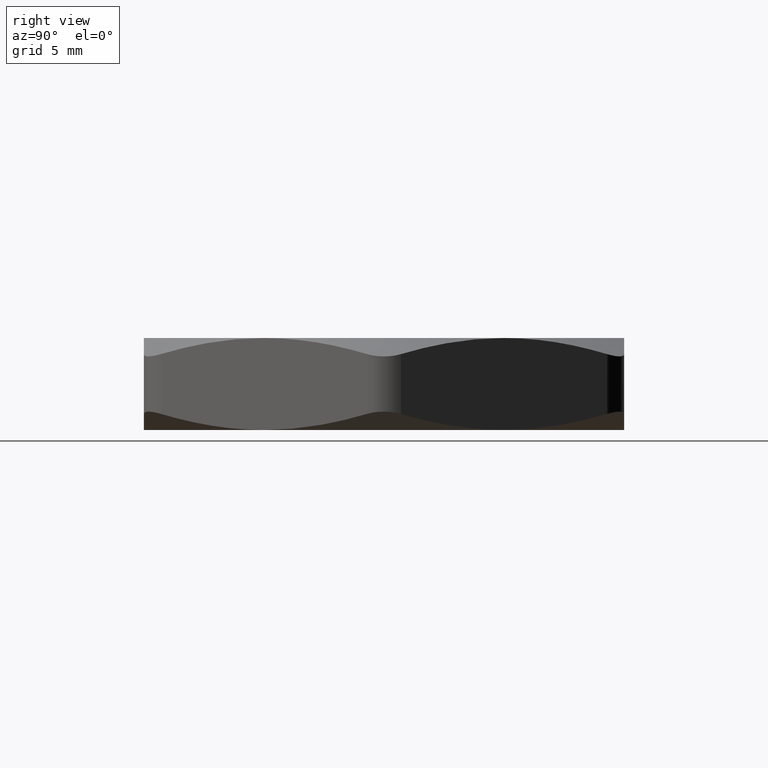
[diagram: clean part render]
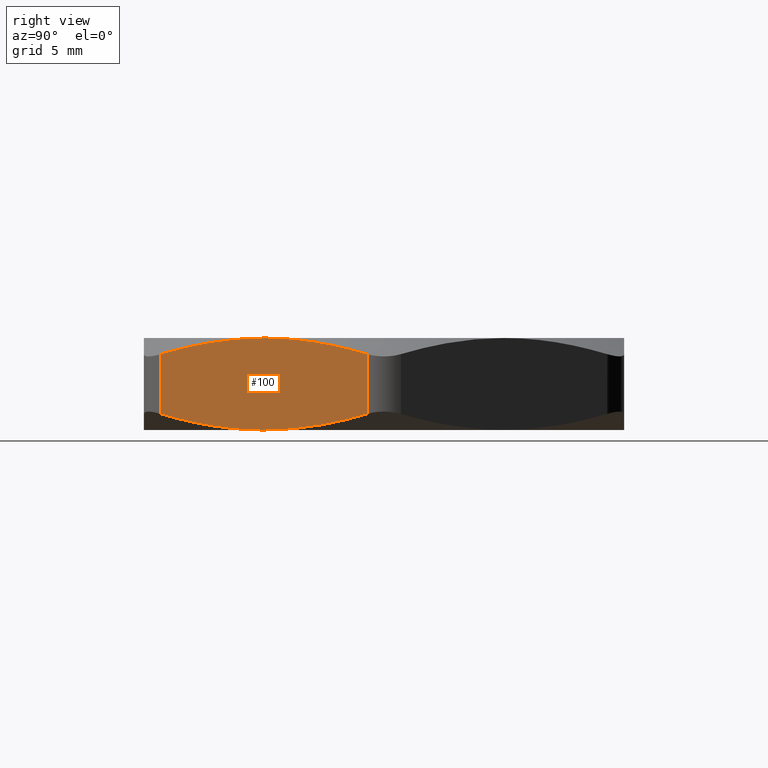
[diagram: same view with one face highlighted and labeled with its STEP entity id]
A machine part, right view. The second image highlights one B-rep face of the part: STEP entity #100.
In plain terms, the highlighted planar face has unit normal (-0.866, 0.5, 0).
Its self-contained STEP definition (entity closure, byte-faithful):
#52 = ORIENTED_EDGE ( 'NONE', *, *, #53, .T. ) ;
#53 = EDGE_CURVE ( 'NONE', #55, #54, #200, .T. ) ;
#54 = VERTEX_POINT ( 'NONE', #252 ) ;
#55 = VERTEX_POINT ( 'NONE', #251 ) ;
#56 = ORIENTED_EDGE ( 'NONE', *, *, #57, .T. ) ;
#57 = EDGE_CURVE ( 'NONE', #166, #58, #250, .T. ) ;
#58 = VERTEX_POINT ( 'NONE', #246 ) ;
#59 = ORIENTED_EDGE ( 'NONE', *, *, #60, .F. ) ;
#60 = EDGE_CURVE ( 'NONE', #120, #58, #245, .T. ) ;
#62 = ORIENTED_EDGE ( 'NONE', *, *, #63, .F. ) ;
#63 = EDGE_CURVE ( 'NONE', #55, #120, #244, .T. ) ;
#100 = ADVANCED_FACE ( 'NONE', ( #330 ), #327, .F. ) ;
#115 = EDGE_LOOP ( 'NONE', ( #116, #56, #59, #62, #52, #158 ) ) ;
#116 = ORIENTED_EDGE ( 'NONE', *, *, #165, .F. ) ;
#120 = VERTEX_POINT ( 'NONE', #385 ) ;
#158 = ORIENTED_EDGE ( 'NONE', *, *, #159, .F. ) ;
#159 = EDGE_CURVE ( 'NONE', #925, #54, #436, .T. ) ;
#165 = EDGE_CURVE ( 'NONE', #166, #925, #467, .T. ) ;
#166 = VERTEX_POINT ( 'NONE', #457 ) ;
#199 = CARTESIAN_POINT ( 'NONE',  ( 0.4358994532381674200, -0.6549999999999998000, 0.2700000000000000200 ) ) ;
#200 = LINE ( 'NONE', #199, #254 ) ;
#230 = CARTESIAN_POINT ( 'NONE',  ( 0.6105479096680293000, -0.3524999999999999800, 0.2700000000000000200 ) ) ;
#231 = CARTESIAN_POINT ( 'NONE',  ( 0.5808746009064212900, -0.4038956784037835400, 0.2700000000000000700 ) ) ;
#232 = CARTESIAN_POINT ( 'NONE',  ( 0.5515158526525254500, -0.4547465220261550100, 0.2656202652624306000 ) ) ;
#233 = CARTESIAN_POINT ( 'NONE',  ( 0.4933393464453332300, -0.5555111865838584500, 0.2493284007340983200 ) ) ;
#234 = CARTESIAN_POINT ( 'NONE',  ( 0.4645190381314640600, -0.6054294248732790000, 0.2374517804956084200 ) ) ;
#235 = CARTESIAN_POINT ( 'NONE',  ( 0.4358994532381674200, -0.6549999999999998000, 0.2227804186536114500 ) ) ;
#236 = CARTESIAN_POINT ( 'NONE',  ( 0.7851963660978910100, -0.04999999999999992000, 0.2227804186536114500 ) ) ;
#237 = CARTESIAN_POINT ( 'NONE',  ( 0.7566400419166667800, -0.09946100435928810500, 0.2374193509268129900 ) ) ;
#238 = CARTESIAN_POINT ( 'NONE',  ( 0.7278546754543654400, -0.1493187215864833200, 0.2492927808487056300 ) ) ;
#239 = CARTESIAN_POINT ( 'NONE',  ( 0.6842147343088038600, -0.2249053168899115600, 0.2615259558775460700 ) ) ;
#240 = CARTESIAN_POINT ( 'NONE',  ( 0.6695910815896637400, -0.2502342263917047300, 0.2646738990051388800 ) ) ;
#241 = CARTESIAN_POINT ( 'NONE',  ( 0.6401734120383140200, -0.3011871246949145400, 0.2689127748557061400 ) ) ;
#242 = CARTESIAN_POINT ( 'NONE',  ( 0.6253236485090153400, -0.3269076696080429100, 0.2699999999999999600 ) ) ;
#243 = CARTESIAN_POINT ( 'NONE',  ( 0.6105479096680293000, -0.3524999999999999800, 0.2700000000000000200 ) ) ;
#244 = B_SPLINE_CURVE_WITH_KNOTS ( 'NONE', 3,
 ( #235, #234, #233, #232, #231, #230 ),
 .UNSPECIFIED., .F., .F.,
 ( 4, 2, 4 ),
 ( 0.001508684045643894600, 0.005984951571987017300, 0.01046121909833014000 ),
 .UNSPECIFIED. ) ;
#245 = B_SPLINE_CURVE_WITH_KNOTS ( 'NONE', 3,
 ( #243, #242, #241, #240, #239, #238, #237, #236 ),
 .UNSPECIFIED., .F., .F.,
 ( 4, 2, 2, 4 ),
 ( 0.01046121909833014000, 0.01269016365193540900, 0.01491910820554067700, 0.01937699731275121400 ),
 .UNSPECIFIED. ) ;
#246 = CARTESIAN_POINT ( 'NONE',  ( 0.7851963660978910100, -0.04999999999999992000, 0.2227804186536114500 ) ) ;
#247 = DIRECTION ( 'NONE',  ( 0.0000000000000000000, 0.0000000000000000000, 1.000000000000000000 ) ) ;
#248 = VECTOR ( 'NONE', #247, 39.37007874015748100 ) ;
#249 = CARTESIAN_POINT ( 'NONE',  ( 0.7851963660978910100, -0.04999999999999973900, 0.2700000000000000200 ) ) ;
#250 = LINE ( 'NONE', #249, #248 ) ;
#251 = CARTESIAN_POINT ( 'NONE',  ( 0.4358994532381674200, -0.6549999999999998000, 0.2227804186536114500 ) ) ;
#252 = CARTESIAN_POINT ( 'NONE',  ( 0.4358994532381674200, -0.6549999999999998000, 0.04721958134638851900 ) ) ;
#253 = DIRECTION ( 'NONE',  ( 0.0000000000000000000, 0.0000000000000000000, -1.000000000000000000 ) ) ;
#254 = VECTOR ( 'NONE', #253, 39.37007874015748100 ) ;
#316 = DIRECTION ( 'NONE',  ( -0.4999999999999998900, -0.8660254037844386000, 0.0000000000000000000 ) ) ;
#317 = DIRECTION ( 'NONE',  ( -0.8660254037844387100, 0.4999999999999999400, 0.0000000000000000000 ) ) ;
#326 = CARTESIAN_POINT ( 'NONE',  ( 0.4070319397786861800, -0.7049999999999998500, 0.2700000000000000200 ) ) ;
#327 = PLANE ( 'NONE',  #329 ) ;
#329 = AXIS2_PLACEMENT_3D ( 'NONE', #326, #317, #316 ) ;
#330 = FACE_OUTER_BOUND ( 'NONE', #115, .T. ) ;
#385 = CARTESIAN_POINT ( 'NONE',  ( 0.6105479096680293000, -0.3524999999999999800, 0.2700000000000000200 ) ) ;
#432 = CARTESIAN_POINT ( 'NONE',  ( 0.5809224072977445800, -0.4038128753050852500, 0.001087225144293919300 ) ) ;
#433 = CARTESIAN_POINT ( 'NONE',  ( 0.5957721708270429200, -0.3780923303919569400, -7.983452266640922900E-017 ) ) ;
#434 = CARTESIAN_POINT ( 'NONE',  ( 0.6105479096680291900, -0.3524999999999999800, 0.0000000000000000000 ) ) ;
#436 = B_SPLINE_CURVE_WITH_KNOTS ( 'NONE', 3,
 ( #434, #433, #432, #489, #488, #487, #486, #485 ),
 .UNSPECIFIED., .F., .F.,
 ( 4, 2, 2, 4 ),
 ( 0.01046121909833014500, 0.01269016365193541400, 0.01491910820554068200, 0.01937699731275122100 ),
 .UNSPECIFIED. ) ;
#457 = CARTESIAN_POINT ( 'NONE',  ( 0.7851963660978910100, -0.04999999999999984300, 0.04721958134638856700 ) ) ;
#459 = CARTESIAN_POINT ( 'NONE',  ( 0.6105479096680291900, -0.3524999999999999800, 0.0000000000000000000 ) ) ;
#460 = CARTESIAN_POINT ( 'NONE',  ( 0.6402212184296372000, -0.3011043215962162500, -7.696661583712303500E-017 ) ) ;
#461 = CARTESIAN_POINT ( 'NONE',  ( 0.6695799666835327000, -0.2502534779738447800, 0.004379734737569406300 ) ) ;
#462 = CARTESIAN_POINT ( 'NONE',  ( 0.7277564728907255400, -0.1494888134161413700, 0.02067159926590185100 ) ) ;
#463 = CARTESIAN_POINT ( 'NONE',  ( 0.7565767812045940400, -0.09957057512672058700, 0.03254821950439153900 ) ) ;
#464 = CARTESIAN_POINT ( 'NONE',  ( 0.7851963660978910100, -0.04999999999999984300, 0.04721958134638856700 ) ) ;
#467 = B_SPLINE_CURVE_WITH_KNOTS ( 'NONE', 3,
 ( #464, #463, #462, #461, #460, #459 ),
 .UNSPECIFIED., .F., .F.,
 ( 4, 2, 4 ),
 ( 0.001508684045643897500, 0.005984951571987020800, 0.01046121909833014500 ),
 .UNSPECIFIED. ) ;
#485 = CARTESIAN_POINT ( 'NONE',  ( 0.4358994532381674200, -0.6549999999999998000, 0.04721958134638851900 ) ) ;
#486 = CARTESIAN_POINT ( 'NONE',  ( 0.4644557774193917600, -0.6055389956407117900, 0.03258064907318709800 ) ) ;
#487 = CARTESIAN_POINT ( 'NONE',  ( 0.4932411438816929900, -0.5556812784135166700, 0.02070721915129443100 ) ) ;
#488 = CARTESIAN_POINT ( 'NONE',  ( 0.5368810850272546200, -0.4800946831100882900, 0.008474044122453942800 ) ) ;
#489 = CARTESIAN_POINT ( 'NONE',  ( 0.5515047377463944100, -0.4547657736082951200, 0.005326100994861174600 ) ) ;
#925 = VERTEX_POINT ( 'NONE', #1718 ) ;
#1718 = CARTESIAN_POINT ( 'NONE',  ( 0.6105479096680291900, -0.3524999999999999800, 0.0000000000000000000 ) ) ;